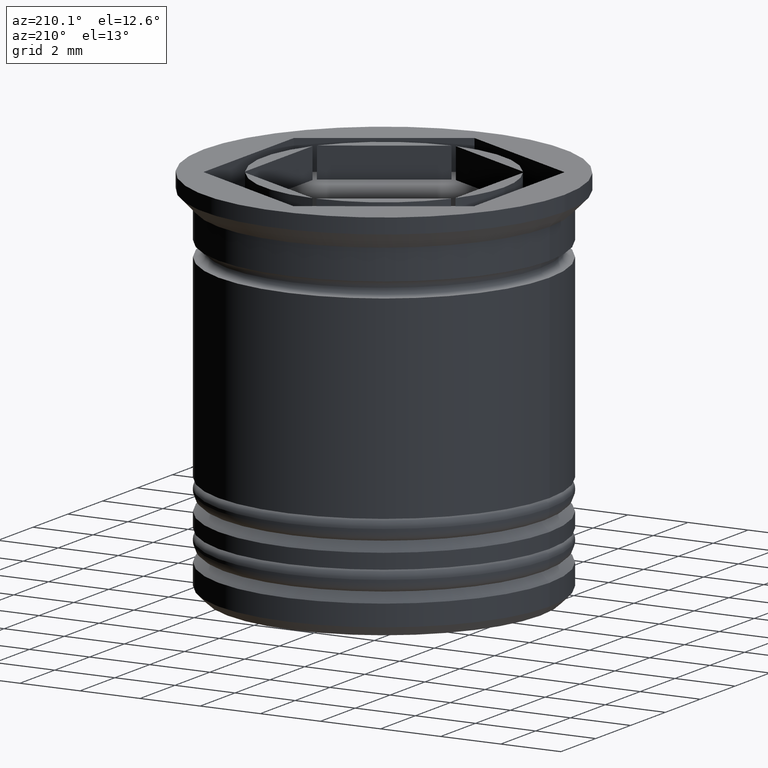
[diagram: clean part render]
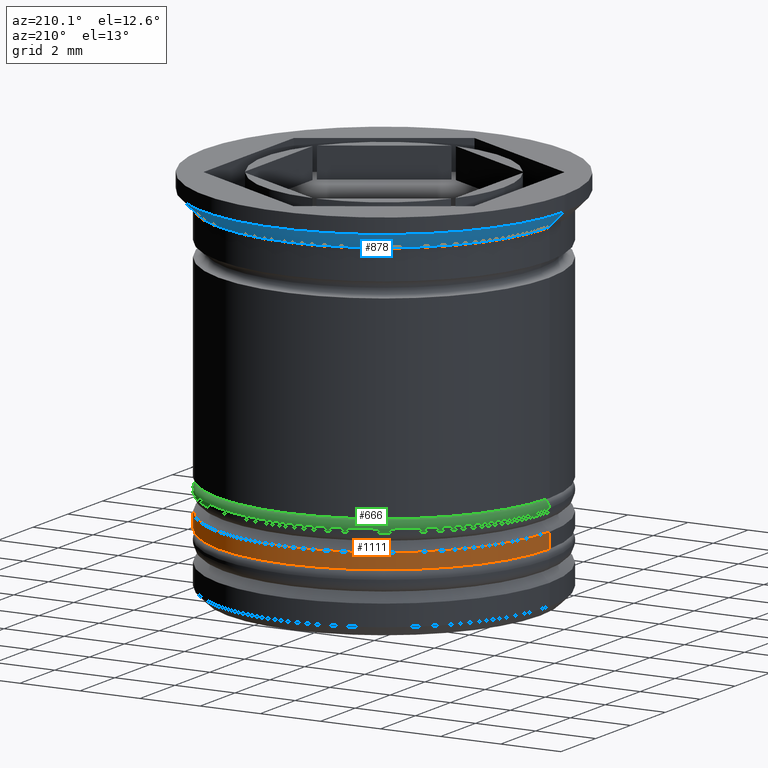
[diagram: same view with three faces highlighted in distinct colors, each labeled with its STEP entity id]
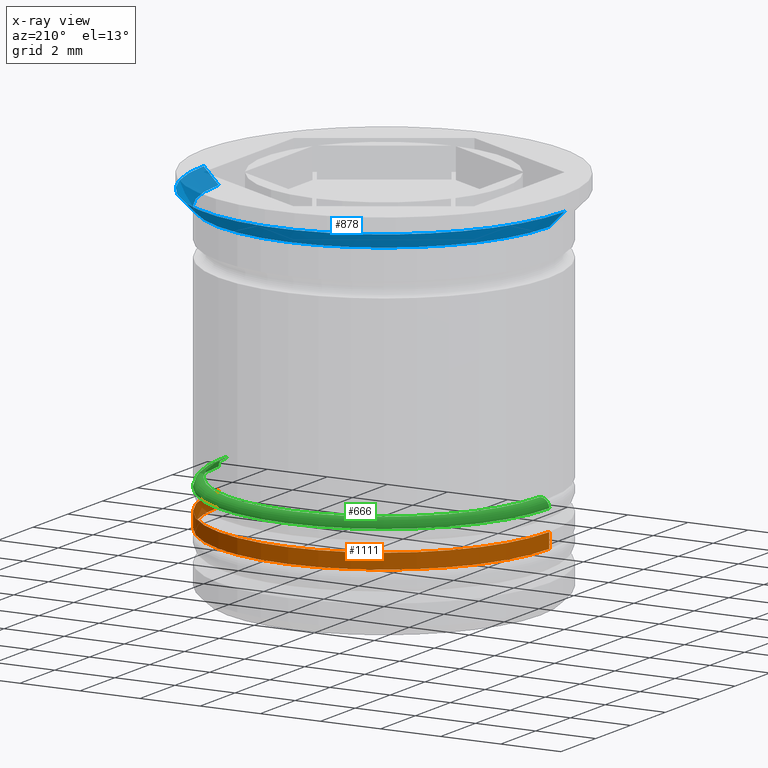
[diagram: x-ray of the same camera — body ghosted, the three highlighted faces saturated]
A machine part, auxiliary view with three faces highlighted in distinct colors.
The next image is the same camera in x-ray (body ghosted, the three faces saturated) — at least one of them is partly hidden behind the body in this view.
Their STEP definitions:

[orange] entity #1111 — the highlighted cylindrical surface (partial cylindrical patch) has radius 5.5 mm, axis along (-0, -0, 1).
#48 = CIRCLE ( 'NONE', #1787, 5.500000000000001776 ) ;
#59 = DIRECTION ( 'NONE',  ( -1.000000000000000000, 0.000000000000000000, 0.000000000000000000 ) ) ;
#68 = CARTESIAN_POINT ( 'NONE',  ( 5.500000000000001776, 0.000000000000000000, 0.000000000000000000 ) ) ;
#78 = DIRECTION ( 'NONE',  ( -0.000000000000000000, -0.000000000000000000, 1.000000000000000000 ) ) ;
#155 = EDGE_CURVE ( 'NONE', #1185, #1286, #955, .T. ) ;
#231 = CARTESIAN_POINT ( 'NONE',  ( -5.500000000000001776, 6.735557395310443995E-16, 0.000000000000000000 ) ) ;
#253 = DIRECTION ( 'NONE',  ( 1.000000000000000000, 0.000000000000000000, 0.000000000000000000 ) ) ;
#317 = CARTESIAN_POINT ( 'NONE',  ( -5.500000000000001776, 6.735557395310443995E-16, -10.50000000000000178 ) ) ;
#534 = CARTESIAN_POINT ( 'NONE',  ( -5.500000000000001776, 6.735557395310443995E-16, -10.00000000000000533 ) ) ;
#555 = VECTOR ( 'NONE', #78, 1000.000000000000000 ) ;
#657 = EDGE_CURVE ( 'NONE', #1286, #1933, #48, .T. ) ;
#721 = EDGE_LOOP ( 'NONE', ( #1222, #1119, #724, #1850 ) ) ;
#724 = ORIENTED_EDGE ( 'NONE', *, *, #657, .T. ) ;
#815 = CARTESIAN_POINT ( 'NONE',  ( 0.000000000000000000, 0.000000000000000000, -10.00000000000000533 ) ) ;
#823 = LINE ( 'NONE', #68, #1196 ) ;
#837 = DIRECTION ( 'NONE',  ( 1.000000000000000000, 0.000000000000000000, 0.000000000000000000 ) ) ;
#855 = CARTESIAN_POINT ( 'NONE',  ( 0.000000000000000000, 0.000000000000000000, 0.000000000000000000 ) ) ;
#898 = DIRECTION ( 'NONE',  ( -0.000000000000000000, -0.000000000000000000, 1.000000000000000000 ) ) ;
#955 = LINE ( 'NONE', #231, #555 ) ;
#996 = DIRECTION ( 'NONE',  ( -0.000000000000000000, -0.000000000000000000, 1.000000000000000000 ) ) ;
#1071 = AXIS2_PLACEMENT_3D ( 'NONE', #1474, #996, #837 ) ;
#1111 = ADVANCED_FACE ( 'NONE', ( #1810 ), #1343, .T. ) ;
#1119 = ORIENTED_EDGE ( 'NONE', *, *, #155, .T. ) ;
#1185 = VERTEX_POINT ( 'NONE', #317 ) ;
#1196 = VECTOR ( 'NONE', #1600, 1000.000000000000000 ) ;
#1222 = ORIENTED_EDGE ( 'NONE', *, *, #1834, .T. ) ;
#1286 = VERTEX_POINT ( 'NONE', #534 ) ;
#1343 = CYLINDRICAL_SURFACE ( 'NONE', #1844, 5.500000000000001776 ) ;
#1474 = CARTESIAN_POINT ( 'NONE',  ( 0.000000000000000000, 0.000000000000000000, -10.50000000000000178 ) ) ;
#1600 = DIRECTION ( 'NONE',  ( -0.000000000000000000, -0.000000000000000000, 1.000000000000000000 ) ) ;
#1608 = CARTESIAN_POINT ( 'NONE',  ( 5.500000000000001776, 0.000000000000000000, -10.50000000000000178 ) ) ;
#1737 = CARTESIAN_POINT ( 'NONE',  ( 5.500000000000001776, 0.000000000000000000, -10.00000000000000533 ) ) ;
#1773 = EDGE_CURVE ( 'NONE', #1985, #1933, #823, .T. ) ;
#1787 = AXIS2_PLACEMENT_3D ( 'NONE', #815, #1883, #59 ) ;
#1810 = FACE_OUTER_BOUND ( 'NONE', #721, .T. ) ;
#1834 = EDGE_CURVE ( 'NONE', #1985, #1185, #1939, .T. ) ;
#1844 = AXIS2_PLACEMENT_3D ( 'NONE', #855, #898, #253 ) ;
#1850 = ORIENTED_EDGE ( 'NONE', *, *, #1773, .F. ) ;
#1883 = DIRECTION ( 'NONE',  ( 0.000000000000000000, 0.000000000000000000, -1.000000000000000000 ) ) ;
#1933 = VERTEX_POINT ( 'NONE', #1737 ) ;
#1939 = CIRCLE ( 'NONE', #1071, 5.500000000000001776 ) ;
#1985 = VERTEX_POINT ( 'NONE', #1608 ) ;

[blue] entity #878 — the highlighted conical surface has half-angle 45 deg.
#33 = CARTESIAN_POINT ( 'NONE',  ( 6.000000000000000000, 0.000000000000000000, -0.4999999999999982792 ) ) ;
#51 = LINE ( 'NONE', #33, #388 ) ;
#95 = CARTESIAN_POINT ( 'NONE',  ( 0.000000000000000000, 0.000000000000000000, -0.4999999999999982792 ) ) ;
#115 = VERTEX_POINT ( 'NONE', #1264 ) ;
#157 = EDGE_CURVE ( 'NONE', #783, #709, #1096, .T. ) ;
#170 = CARTESIAN_POINT ( 'NONE',  ( 6.000000000000000000, 0.000000000000000000, -0.4999999999999982792 ) ) ;
#217 = DIRECTION ( 'NONE',  ( -0.000000000000000000, -0.000000000000000000, 1.000000000000000000 ) ) ;
#238 = CIRCLE ( 'NONE', #1754, 5.499999999999998224 ) ;
#346 = CARTESIAN_POINT ( 'NONE',  ( -5.499999999999998224, 6.735557395310440051E-16, -0.9999999999999997780 ) ) ;
#388 = VECTOR ( 'NONE', #497, 999.9999999999998863 ) ;
#497 = DIRECTION ( 'NONE',  ( 0.7071067811865469066, 0.000000000000000000, 0.7071067811865482389 ) ) ;
#538 = CARTESIAN_POINT ( 'NONE',  ( 0.000000000000000000, 0.000000000000000000, -0.4999999999999982792 ) ) ;
#607 = EDGE_CURVE ( 'NONE', #115, #1900, #238, .T. ) ;
#637 = CARTESIAN_POINT ( 'NONE',  ( -6.000000000000000000, 7.347880794884119736E-16, -0.4999999999999982792 ) ) ;
#705 = ORIENTED_EDGE ( 'NONE', *, *, #1562, .T. ) ;
#709 = VERTEX_POINT ( 'NONE', #637 ) ;
#710 = CONICAL_SURFACE ( 'NONE', #1420, 6.000000000000000000, 0.7853981633974473908 ) ;
#783 = VERTEX_POINT ( 'NONE', #170 ) ;
#821 = DIRECTION ( 'NONE',  ( -1.000000000000000000, 0.000000000000000000, 0.000000000000000000 ) ) ;
#849 = FACE_OUTER_BOUND ( 'NONE', #1418, .T. ) ;
#878 = ADVANCED_FACE ( 'NONE', ( #849 ), #710, .T. ) ;
#980 = CARTESIAN_POINT ( 'NONE',  ( -6.000000000000000000, 7.347880794884119736E-16, -0.4999999999999982792 ) ) ;
#989 = DIRECTION ( 'NONE',  ( 1.000000000000000000, 0.000000000000000000, 0.000000000000000000 ) ) ;
#1022 = EDGE_CURVE ( 'NONE', #115, #783, #51, .T. ) ;
#1039 = DIRECTION ( 'NONE',  ( 1.000000000000000000, 0.000000000000000000, 0.000000000000000000 ) ) ;
#1096 = CIRCLE ( 'NONE', #1195, 6.000000000000000000 ) ;
#1124 = DIRECTION ( 'NONE',  ( -0.7071067811865469066, 8.659560562354926695E-17, 0.7071067811865482389 ) ) ;
#1184 = DIRECTION ( 'NONE',  ( -0.000000000000000000, -0.000000000000000000, 1.000000000000000000 ) ) ;
#1195 = AXIS2_PLACEMENT_3D ( 'NONE', #95, #217, #821 ) ;
#1251 = ORIENTED_EDGE ( 'NONE', *, *, #607, .T. ) ;
#1264 = CARTESIAN_POINT ( 'NONE',  ( 5.499999999999998224, 0.000000000000000000, -0.9999999999999997780 ) ) ;
#1313 = LINE ( 'NONE', #980, #1459 ) ;
#1383 = CARTESIAN_POINT ( 'NONE',  ( 0.000000000000000000, 0.000000000000000000, -0.9999999999999997780 ) ) ;
#1418 = EDGE_LOOP ( 'NONE', ( #1251, #705, #1509, #1505 ) ) ;
#1420 = AXIS2_PLACEMENT_3D ( 'NONE', #538, #1768, #989 ) ;
#1459 = VECTOR ( 'NONE', #1124, 999.9999999999998863 ) ;
#1505 = ORIENTED_EDGE ( 'NONE', *, *, #1022, .F. ) ;
#1509 = ORIENTED_EDGE ( 'NONE', *, *, #157, .F. ) ;
#1562 = EDGE_CURVE ( 'NONE', #1900, #709, #1313, .T. ) ;
#1754 = AXIS2_PLACEMENT_3D ( 'NONE', #1383, #1184, #1039 ) ;
#1768 = DIRECTION ( 'NONE',  ( -0.000000000000000000, -0.000000000000000000, 1.000000000000000000 ) ) ;
#1900 = VERTEX_POINT ( 'NONE', #346 ) ;

[green] entity #666 — the highlighted toroidal blend (fillet) surface has major radius 5.2 mm and minor (blend) radius 0.3 mm.
#97 = DIRECTION ( 'NONE',  ( 0.000000000000000000, 0.000000000000000000, -1.000000000000000000 ) ) ;
#137 = CARTESIAN_POINT ( 'NONE',  ( -5.200000000000001066, 0.000000000000000000, -9.000000000000001776 ) ) ;
#175 = CIRCLE ( 'NONE', #1553, 0.2999999999999999334 ) ;
#184 = EDGE_LOOP ( 'NONE', ( #442, #886, #867, #850 ) ) ;
#272 = DIRECTION ( 'NONE',  ( 0.000000000000000000, 0.000000000000000000, -1.000000000000000000 ) ) ;
#395 = AXIS2_PLACEMENT_3D ( 'NONE', #1372, #272, #732 ) ;
#405 = DIRECTION ( 'NONE',  ( -1.000000000000000000, -1.224646799147353207E-16, 0.000000000000000000 ) ) ;
#424 = CIRCLE ( 'NONE', #1713, 5.500000000000001776 ) ;
#432 = DIRECTION ( 'NONE',  ( -1.000000000000000000, 0.000000000000000000, 0.000000000000000000 ) ) ;
#442 = ORIENTED_EDGE ( 'NONE', *, *, #928, .F. ) ;
#466 = CARTESIAN_POINT ( 'NONE',  ( 0.000000000000000000, 0.000000000000000000, -9.000000000000001776 ) ) ;
#498 = EDGE_CURVE ( 'NONE', #1922, #702, #175, .T. ) ;
#666 = ADVANCED_FACE ( 'NONE', ( #841 ), #1621, .T. ) ;
#702 = VERTEX_POINT ( 'NONE', #1404 ) ;
#718 = CIRCLE ( 'NONE', #1266, 5.200000000000001066 ) ;
#732 = DIRECTION ( 'NONE',  ( -1.000000000000000000, 0.000000000000000000, 0.000000000000000000 ) ) ;
#841 = FACE_OUTER_BOUND ( 'NONE', #184, .T. ) ;
#848 = CARTESIAN_POINT ( 'NONE',  ( 0.000000000000000000, 0.000000000000000000, -9.299999999999998934 ) ) ;
#850 = ORIENTED_EDGE ( 'NONE', *, *, #1877, .F. ) ;
#867 = ORIENTED_EDGE ( 'NONE', *, *, #1576, .F. ) ;
#886 = ORIENTED_EDGE ( 'NONE', *, *, #498, .T. ) ;
#928 = EDGE_CURVE ( 'NONE', #1922, #1168, #718, .T. ) ;
#1010 = DIRECTION ( 'NONE',  ( -0.000000000000000000, -1.000000000000000000, -0.000000000000000000 ) ) ;
#1050 = CARTESIAN_POINT ( 'NONE',  ( 5.200000000000001066, 6.368163355566238354E-16, -9.299999999999998934 ) ) ;
#1064 = VERTEX_POINT ( 'NONE', #1835 ) ;
#1168 = VERTEX_POINT ( 'NONE', #137 ) ;
#1266 = AXIS2_PLACEMENT_3D ( 'NONE', #466, #1541, #432 ) ;
#1372 = CARTESIAN_POINT ( 'NONE',  ( 0.000000000000000000, 0.000000000000000000, -9.299999999999998934 ) ) ;
#1404 = CARTESIAN_POINT ( 'NONE',  ( 5.500000000000001776, 0.000000000000000000, -9.299999999999998934 ) ) ;
#1541 = DIRECTION ( 'NONE',  ( -0.000000000000000000, -0.000000000000000000, 1.000000000000000000 ) ) ;
#1553 = AXIS2_PLACEMENT_3D ( 'NONE', #1050, #1627, #405 ) ;
#1576 = EDGE_CURVE ( 'NONE', #1064, #702, #424, .T. ) ;
#1591 = DIRECTION ( 'NONE',  ( 0.000000000000000000, 0.000000000000000000, -1.000000000000000000 ) ) ;
#1621 = TOROIDAL_SURFACE ( 'NONE', #395, 5.200000000000001066, 0.2999999999999999889 ) ;
#1627 = DIRECTION ( 'NONE',  ( -1.224646799147353207E-16, 1.000000000000000000, 0.000000000000000000 ) ) ;
#1656 = CIRCLE ( 'NONE', #1688, 0.2999999999999999334 ) ;
#1688 = AXIS2_PLACEMENT_3D ( 'NONE', #1778, #1010, #1591 ) ;
#1713 = AXIS2_PLACEMENT_3D ( 'NONE', #848, #97, #1743 ) ;
#1727 = CARTESIAN_POINT ( 'NONE',  ( 5.200000000000001066, 6.551860375438340681E-16, -9.000000000000001776 ) ) ;
#1743 = DIRECTION ( 'NONE',  ( -1.000000000000000000, 0.000000000000000000, 0.000000000000000000 ) ) ;
#1778 = CARTESIAN_POINT ( 'NONE',  ( -5.200000000000001066, 0.000000000000000000, -9.299999999999998934 ) ) ;
#1835 = CARTESIAN_POINT ( 'NONE',  ( -5.500000000000001776, 6.735557395310443995E-16, -9.299999999999998934 ) ) ;
#1877 = EDGE_CURVE ( 'NONE', #1168, #1064, #1656, .T. ) ;
#1922 = VERTEX_POINT ( 'NONE', #1727 ) ;